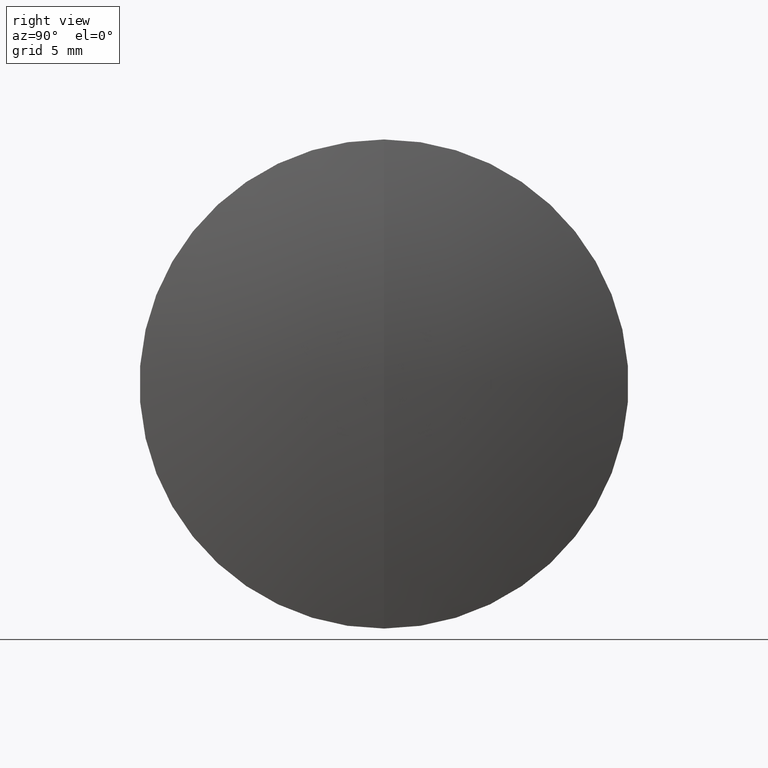
[diagram: clean part render]
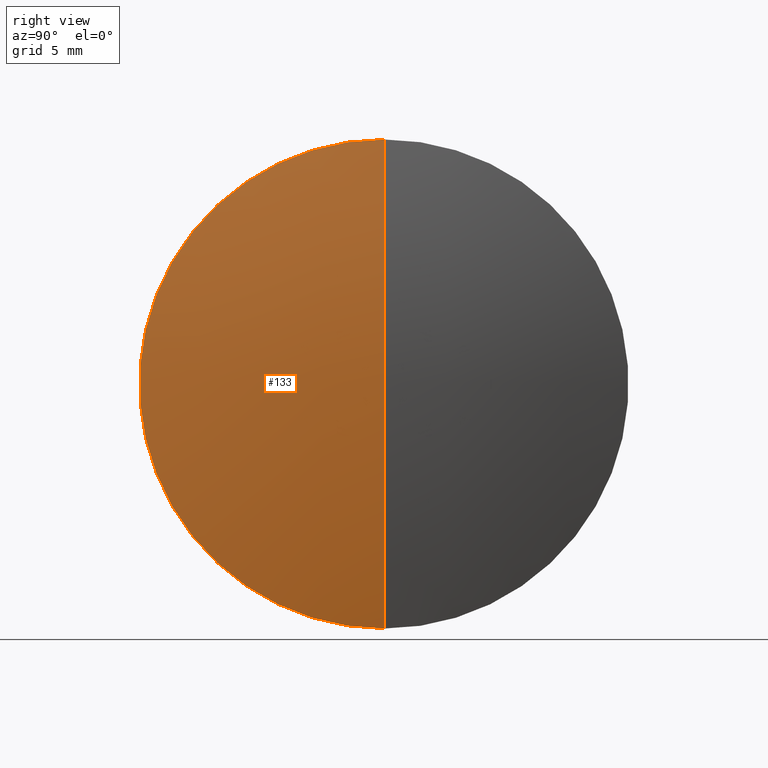
[diagram: same view with one face highlighted and labeled with its STEP entity id]
A machine part, right view. The second image highlights one B-rep face of the part: STEP entity #133.
In plain terms, the highlighted spherical surface has radius 57.7 mm.
Its self-contained STEP definition (entity closure, byte-faithful):
#21 = FACE_OUTER_BOUND ( 'NONE', #168, .T. ) ;
#32 = DIRECTION ( 'NONE',  ( -1.000000000000000000, -0.0000000000000000000, -0.0000000000000000000 ) ) ;
#34 = VERTEX_POINT ( 'NONE', #165 ) ;
#39 = CARTESIAN_POINT ( 'NONE',  ( 232.2808349263005700, 0.0000000000000000000, 0.0000000000000000000 ) ) ;
#42 = DIRECTION ( 'NONE',  ( 0.0000000000000000000, -1.224646799147353200E-016, 1.000000000000000000 ) ) ;
#74 = EDGE_CURVE ( 'NONE', #146, #34, #223, .T. ) ;
#83 = DIRECTION ( 'NONE',  ( -0.0000000000000000000, 1.000000000000000000, 1.224646799147353200E-016 ) ) ;
#89 = DIRECTION ( 'NONE',  ( 0.0000000000000000000, -1.000000000000000000, 0.0000000000000000000 ) ) ;
#103 = AXIS2_PLACEMENT_3D ( 'NONE', #39, #32, #230 ) ;
#130 = CIRCLE ( 'NONE', #189, 57.70000000000000300 ) ;
#133 = ADVANCED_FACE ( 'NONE', ( #21 ), #149, .T. ) ;
#146 = VERTEX_POINT ( 'NONE', #339 ) ;
#149 = SPHERICAL_SURFACE ( 'NONE', #157, 57.70000000000000300 ) ;
#157 = AXIS2_PLACEMENT_3D ( 'NONE', #196, #248, #205 ) ;
#165 = CARTESIAN_POINT ( 'NONE',  ( 232.2808349263005700, 0.0000000000000000000, 12.70000000000000300 ) ) ;
#168 = EDGE_LOOP ( 'NONE', ( #290, #337, #183 ) ) ;
#169 = CIRCLE ( 'NONE', #103, 12.70000000000000300 ) ;
#183 = ORIENTED_EDGE ( 'NONE', *, *, #231, .F. ) ;
#189 = AXIS2_PLACEMENT_3D ( 'NONE', #246, #83, #42 ) ;
#196 = CARTESIAN_POINT ( 'NONE',  ( 175.9958458084194300, 0.0000000000000000000, 0.0000000000000000000 ) ) ;
#205 = DIRECTION ( 'NONE',  ( 0.0000000000000000000, 0.0000000000000000000, 1.000000000000000000 ) ) ;
#206 = CARTESIAN_POINT ( 'NONE',  ( 232.2808349263005700, 1.555301434917138800E-015, -12.70000000000000300 ) ) ;
#208 = AXIS2_PLACEMENT_3D ( 'NONE', #325, #89, #341 ) ;
#223 = CIRCLE ( 'NONE', #208, 57.70000000000000300 ) ;
#230 = DIRECTION ( 'NONE',  ( 0.0000000000000000000, 0.0000000000000000000, 1.000000000000000000 ) ) ;
#231 = EDGE_CURVE ( 'NONE', #265, #34, #169, .T. ) ;
#246 = CARTESIAN_POINT ( 'NONE',  ( 175.9958458084194300, 0.0000000000000000000, 0.0000000000000000000 ) ) ;
#248 = DIRECTION ( 'NONE',  ( 0.0000000000000000000, 1.000000000000000000, 0.0000000000000000000 ) ) ;
#265 = VERTEX_POINT ( 'NONE', #206 ) ;
#286 = EDGE_CURVE ( 'NONE', #146, #265, #130, .T. ) ;
#290 = ORIENTED_EDGE ( 'NONE', *, *, #286, .F. ) ;
#325 = CARTESIAN_POINT ( 'NONE',  ( 175.9958458084194300, 0.0000000000000000000, 0.0000000000000000000 ) ) ;
#337 = ORIENTED_EDGE ( 'NONE', *, *, #74, .T. ) ;
#339 = CARTESIAN_POINT ( 'NONE',  ( 233.6958458084194200, 0.0000000000000000000, 3.533106015540114000E-015 ) ) ;
#341 = DIRECTION ( 'NONE',  ( 0.0000000000000000000, 0.0000000000000000000, -1.000000000000000000 ) ) ;